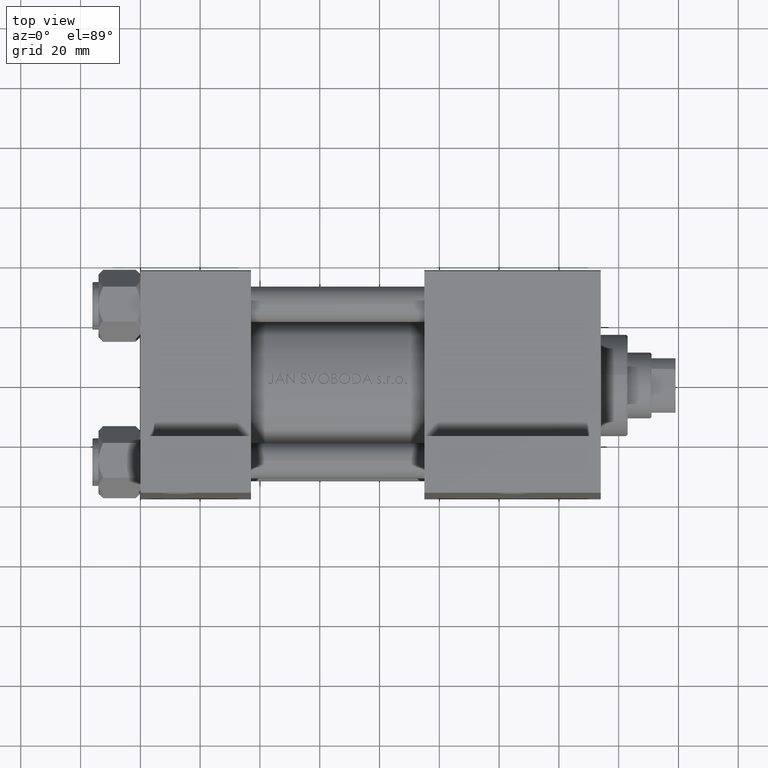
[diagram: clean part render]
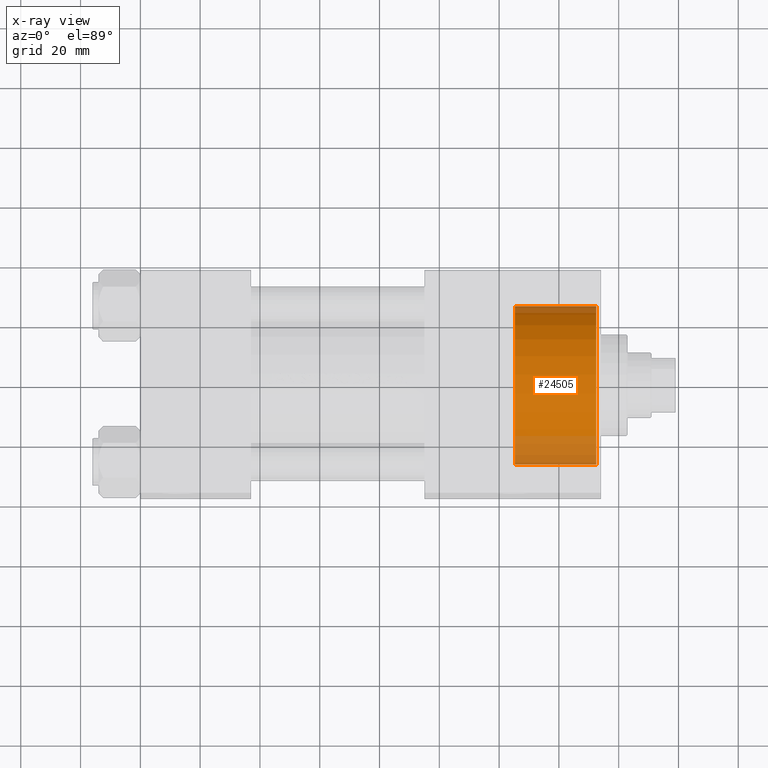
[diagram: x-ray — body ghosted, one internal face saturated and labeled with its STEP entity id]
A machine part, top view, then the same camera in x-ray: the body is ghosted and one INTERNAL B-rep face — a face not visible from any outside direction — is saturated and labeled: STEP entity #24505.
In plain terms, the highlighted cylindrical surface (partial cylindrical patch) has radius 26.5 mm, axis along (1, 0, 0).
Its self-contained STEP definition (entity closure, byte-faithful):
#10 = CARTESIAN_POINT ( 'NONE',  ( 152.5000000000000568, 3.245314017740486554E-15, 26.00000000000000355 ) ) ;
#81 = LINE ( 'NONE', #29405, #36867 ) ;
#526 = DIRECTION ( 'NONE',  ( 1.000000000000000000, 0.000000000000000000, 0.000000000000000000 ) ) ;
#1196 = EDGE_CURVE ( 'NONE', #44544, #47484, #16411, .T. ) ;
#2192 = DIRECTION ( 'NONE',  ( 1.000000000000000000, 0.000000000000000000, 0.000000000000000000 ) ) ;
#2554 = CARTESIAN_POINT ( 'NONE',  ( 152.5000000000000568, 0.000000000000000000, -27.00000000000000355 ) ) ;
#8600 = DIRECTION ( 'NONE',  ( 1.000000000000000000, -0.000000000000000000, -0.000000000000000000 ) ) ;
#9000 = VERTEX_POINT ( 'NONE', #10 ) ;
#10962 = EDGE_CURVE ( 'NONE', #47484, #23637, #19659, .T. ) ;
#13467 = ORIENTED_EDGE ( 'NONE', *, *, #10962, .F. ) ;
#15189 = DIRECTION ( 'NONE',  ( 0.000000000000000000, 0.000000000000000000, 1.000000000000000000 ) ) ;
#16411 = CIRCLE ( 'NONE', #35586, 26.50000000000000355 ) ;
#19314 = AXIS2_PLACEMENT_3D ( 'NONE', #26722, #526, #15189 ) ;
#19659 = LINE ( 'NONE', #41541, #21269 ) ;
#20781 = DIRECTION ( 'NONE',  ( 1.000000000000000000, -0.000000000000000000, -0.000000000000000000 ) ) ;
#21269 = VECTOR ( 'NONE', #8600, 1000.000000000000000 ) ;
#21284 = ORIENTED_EDGE ( 'NONE', *, *, #34914, .T. ) ;
#23637 = VERTEX_POINT ( 'NONE', #2554 ) ;
#24505 = ADVANCED_FACE ( 'NONE', ( #38825 ), #42656, .F. ) ;
#25249 = CARTESIAN_POINT ( 'NONE',  ( 125.2999999999999972, 0.000000000000000000, -27.00000000000000355 ) ) ;
#26722 = CARTESIAN_POINT ( 'NONE',  ( 152.5000000000000568, 0.000000000000000000, -0.5000000000000004441 ) ) ;
#27389 = CARTESIAN_POINT ( 'NONE',  ( 125.2999999999999972, 3.245314017740486554E-15, 26.00000000000000355 ) ) ;
#27763 = CARTESIAN_POINT ( 'NONE',  ( 125.2999999999999972, 0.000000000000000000, -0.5000000000000004441 ) ) ;
#28358 = EDGE_CURVE ( 'NONE', #44544, #9000, #81, .T. ) ;
#29405 = CARTESIAN_POINT ( 'NONE',  ( 125.2999999999999972, 3.245314017740486554E-15, 26.00000000000000355 ) ) ;
#31988 = DIRECTION ( 'NONE',  ( 0.000000000000000000, 0.000000000000000000, -1.000000000000000000 ) ) ;
#32857 = ORIENTED_EDGE ( 'NONE', *, *, #28358, .T. ) ;
#34914 = EDGE_CURVE ( 'NONE', #9000, #23637, #40035, .T. ) ;
#35586 = AXIS2_PLACEMENT_3D ( 'NONE', #35594, #2192, #31988 ) ;
#35594 = CARTESIAN_POINT ( 'NONE',  ( 125.2999999999999972, 0.000000000000000000, -0.5000000000000004441 ) ) ;
#36867 = VECTOR ( 'NONE', #44070, 1000.000000000000000 ) ;
#38825 = FACE_OUTER_BOUND ( 'NONE', #38865, .T. ) ;
#38865 = EDGE_LOOP ( 'NONE', ( #43884, #32857, #21284, #13467 ) ) ;
#40035 = CIRCLE ( 'NONE', #19314, 26.50000000000000355 ) ;
#41541 = CARTESIAN_POINT ( 'NONE',  ( 125.2999999999999972, 0.000000000000000000, -27.00000000000000355 ) ) ;
#42656 = CYLINDRICAL_SURFACE ( 'NONE', #46746, 26.50000000000000355 ) ;
#43884 = ORIENTED_EDGE ( 'NONE', *, *, #1196, .F. ) ;
#44070 = DIRECTION ( 'NONE',  ( 1.000000000000000000, -0.000000000000000000, -0.000000000000000000 ) ) ;
#44544 = VERTEX_POINT ( 'NONE', #27389 ) ;
#46268 = DIRECTION ( 'NONE',  ( 0.000000000000000000, 0.000000000000000000, -1.000000000000000000 ) ) ;
#46746 = AXIS2_PLACEMENT_3D ( 'NONE', #27763, #20781, #46268 ) ;
#47484 = VERTEX_POINT ( 'NONE', #25249 ) ;